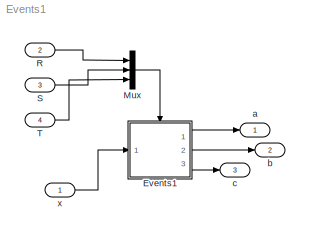
MODEL Events1
KIND model
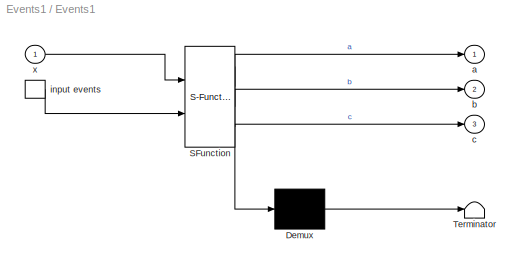
BLOCK [SubSystem] Events1
  ErrorFcn = Stateflow.Translate.translate
  PermitHierarchicalResolution = ExplicitOnly
  Ports = [1, 3, 0, 1]
  RequestExecContextInheritance = off
  SFBlockType = Chart
  SID = 1
  TreatAsAtomicUnit = on
BLOCK [Demux] Events1/ Demux 
  Outputs = 1
  Ports = [1, 1]
  SID = 1::16
BLOCK [S-Function] Events1/ SFunction 
  EnableBusSupport = on
  FunctionName = sf_sfun
  PortCounts = [2 4]
  Ports = [2, 4]
  SFcnIsStateOwnerBlock = off
  SFunctionDeploymentMode = off
  SID = 1::15
  Tag = Stateflow S-Function 1
BLOCK [Terminator] Events1/ Terminator 
  SID = 1::17
BLOCK [TriggerPort] Events1/ input events 
  Ports = [0, 1]
  SID = 1::2
  ShowOutputPort = on
  TriggerType = either
  VariantControl = (inherit)
BLOCK [Outport] Events1/a
  IconDisplay = Port number
  SID = 1::6
BLOCK [Outport] Events1/b
  IconDisplay = Port number
  Port = 2
  SID = 1::7
BLOCK [Outport] Events1/c
  IconDisplay = Port number
  Port = 3
  SID = 1::8
BLOCK [Inport] Events1/x
  IconDisplay = Port number
  SID = 1::1
BLOCK [Mux] Mux
  DisplayOption = bar
  Inputs = 3
  Ports = [3, 1]
  SID = 6
BLOCK [Inport] R
  IconDisplay = Port number
  Port = 2
  SID = 3
BLOCK [Inport] S
  IconDisplay = Port number
  Port = 3
  SID = 4
BLOCK [Inport] T
  IconDisplay = Port number
  Port = 4
  SID = 5
BLOCK [Outport] a
  IconDisplay = Port number
  SID = 7
BLOCK [Outport] b
  IconDisplay = Port number
  Port = 2
  SID = 8
BLOCK [Outport] c
  IconDisplay = Port number
  Port = 3
  SID = 9
BLOCK [Inport] x
  IconDisplay = Port number
  SID = 2
LINE Events1/ Demux :1 -> Events1/ Terminator :1
LINE Events1/ SFunction :1 -> Events1/ Demux :1
LINE Events1/ SFunction :2 -> Events1/a:1
LINE Events1/ SFunction :3 -> Events1/b:1
LINE Events1/ SFunction :4 -> Events1/c:1
LINE Events1/ input events :1 -> Events1/ SFunction :2
LINE Events1/x:1 -> Events1/ SFunction :1
LINE Events1:1 -> a:1
LINE Events1:2 -> b:1
LINE Events1:3 -> c:1
LINE Mux:1 -> Events1:trigger
LINE R:1 -> Mux:1
LINE S:1 -> Mux:2
LINE T:1 -> Mux:3
LINE x:1 -> Events1:1
CHART Events1 states=14 transitions=18
  STATE_LABEL 'A'
  STATE_LABEL 'A2'
  STATE_LABEL 'A2a/\\nen:a=x+3'
  STATE_LABEL 'A2b/\\nen:a=x+4'
  STATE_LABEL 'A1'
  STATE_LABEL 'A1a/\\nen:a=x+1'
  STATE_LABEL 'A1b/\\nen:a++;'
  STATE_LABEL 'B'
  STATE_LABEL 'B2'
  STATE_LABEL 'B2a/\\nen:b=x+7'
  STATE_LABEL 'B2b/\\nen:b=x+8'
  STATE_LABEL 'B1'
  STATE_LABEL 'B1a/\\nen:b=x+5'
  STATE_LABEL 'B1b/\\nen:b=x+6'
